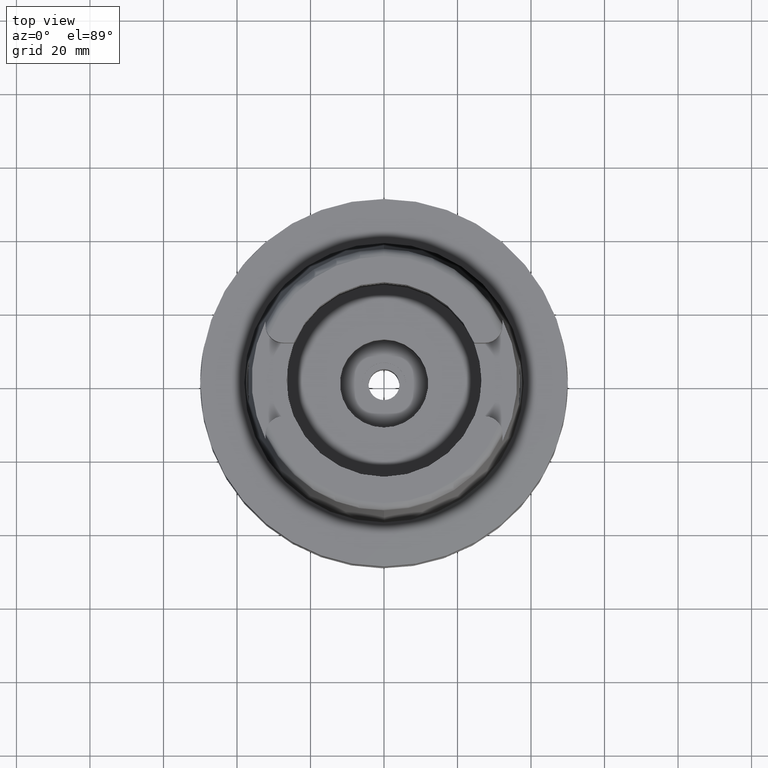
[diagram: clean part render]
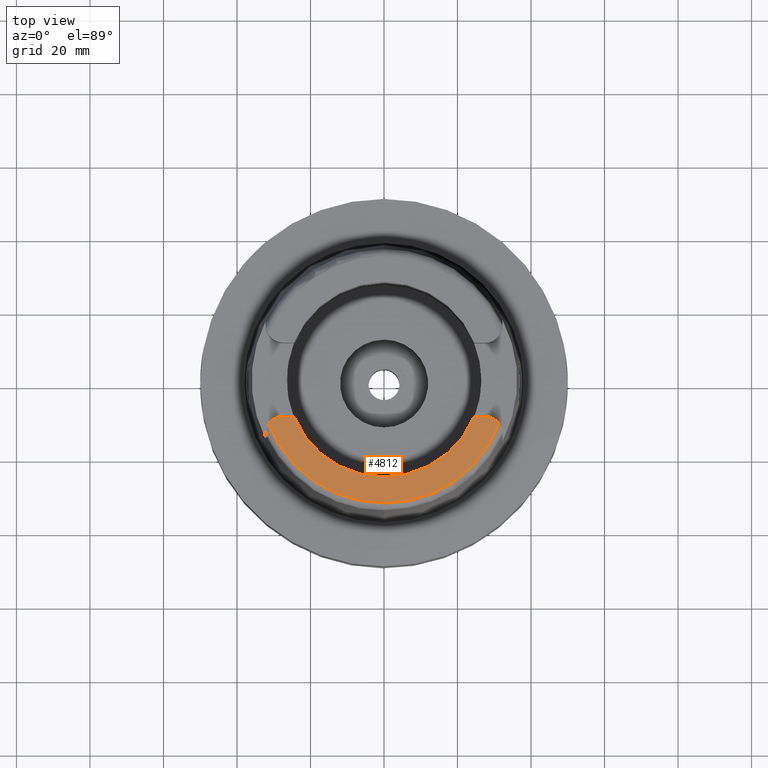
[diagram: same view with one face highlighted and labeled with its STEP entity id]
A machine part, top view. The second image highlights one B-rep face of the part: STEP entity #4812.
In plain terms, the highlighted planar face has unit normal (0, 0, 1).
Its self-contained STEP definition (entity closure, byte-faithful):
#114 = ORIENTED_EDGE ( 'NONE', *, *, #1741, .F. ) ;
#144 = CARTESIAN_POINT ( 'NONE',  ( 27.36999999999999744, -10.00999999999999979, 50.00000000000000000 ) ) ;
#162 = PLANE ( 'NONE',  #3850 ) ;
#310 = VERTEX_POINT ( 'NONE', #4033 ) ;
#424 = ORIENTED_EDGE ( 'NONE', *, *, #836, .F. ) ;
#474 = VERTEX_POINT ( 'NONE', #4772 ) ;
#504 = CARTESIAN_POINT ( 'NONE',  ( 0.0000000000000000000, 0.0000000000000000000, 50.00000000000000000 ) ) ;
#510 = CIRCLE ( 'NONE', #4399, 26.50000000000000000 ) ;
#550 = EDGE_LOOP ( 'NONE', ( #114, #424, #1623, #3859, #2338, #1846, #3693 ) ) ;
#820 = DIRECTION ( 'NONE',  ( 0.0000000000000000000, 1.000000000000000000, 0.0000000000000000000 ) ) ;
#836 = EDGE_CURVE ( 'NONE', #2113, #2295, #2873, .T. ) ;
#872 = DIRECTION ( 'NONE',  ( 0.0000000000000000000, 0.0000000000000000000, -1.000000000000000000 ) ) ;
#881 = AXIS2_PLACEMENT_3D ( 'NONE', #504, #3957, #2739 ) ;
#891 = CIRCLE ( 'NONE', #2073, 4.880000000000001670 ) ;
#959 = EDGE_CURVE ( 'NONE', #474, #310, #3326, .T. ) ;
#1010 = FACE_OUTER_BOUND ( 'NONE', #550, .T. ) ;
#1071 = VERTEX_POINT ( 'NONE', #1116 ) ;
#1097 = DIRECTION ( 'NONE',  ( -1.000000000000000000, 1.442003377036999905E-13, 0.0000000000000000000 ) ) ;
#1116 = CARTESIAN_POINT ( 'NONE',  ( 24.53670515777999839, -10.00999999999999979, 50.00000000000000000 ) ) ;
#1267 = VERTEX_POINT ( 'NONE', #5568 ) ;
#1344 = DIRECTION ( 'NONE',  ( -1.000000000000000000, -1.454542536837999925E-13, 0.0000000000000000000 ) ) ;
#1623 = ORIENTED_EDGE ( 'NONE', *, *, #4436, .T. ) ;
#1741 = EDGE_CURVE ( 'NONE', #2295, #2890, #3149, .T. ) ;
#1750 = DIRECTION ( 'NONE',  ( 0.0000000000000000000, -1.000000000000000000, 0.0000000000000000000 ) ) ;
#1846 = ORIENTED_EDGE ( 'NONE', *, *, #4119, .T. ) ;
#1858 = VECTOR ( 'NONE', #1097, 1000.000000000000000 ) ;
#1862 = EDGE_CURVE ( 'NONE', #2890, #1267, #891, .T. ) ;
#2042 = CARTESIAN_POINT ( 'NONE',  ( 0.0000000000000000000, 0.0000000000000000000, 50.00000000000000000 ) ) ;
#2073 = AXIS2_PLACEMENT_3D ( 'NONE', #4301, #2556, #4762 ) ;
#2113 = VERTEX_POINT ( 'NONE', #4530 ) ;
#2147 = CARTESIAN_POINT ( 'NONE',  ( 0.0000000000000000000, 0.0000000000000000000, 50.00000000000000000 ) ) ;
#2295 = VERTEX_POINT ( 'NONE', #3365 ) ;
#2313 = VECTOR ( 'NONE', #1344, 1000.000000000000000 ) ;
#2338 = ORIENTED_EDGE ( 'NONE', *, *, #959, .F. ) ;
#2354 = LINE ( 'NONE', #4470, #1858 ) ;
#2495 = DIRECTION ( 'NONE',  ( 0.0000000000000000000, 0.0000000000000000000, -1.000000000000000000 ) ) ;
#2556 = DIRECTION ( 'NONE',  ( 0.0000000000000000000, 0.0000000000000000000, -1.000000000000000000 ) ) ;
#2739 = DIRECTION ( 'NONE',  ( -0.9259134021805098813, -0.3777358490566039562, 0.0000000000000000000 ) ) ;
#2873 = CIRCLE ( 'NONE', #4696, 4.879999999999999005 ) ;
#2890 = VERTEX_POINT ( 'NONE', #3549 ) ;
#3149 = CIRCLE ( 'NONE', #5160, 33.59743838135999994 ) ;
#3326 = CIRCLE ( 'NONE', #881, 26.50000000000000711 ) ;
#3365 = CARTESIAN_POINT ( 'NONE',  ( 31.35385269249000473, -12.07161079256999869, 50.00000000000000000 ) ) ;
#3549 = CARTESIAN_POINT ( 'NONE',  ( -31.35385269249000473, -12.07161079256999869, 50.00000000000000000 ) ) ;
#3637 = CARTESIAN_POINT ( 'NONE',  ( 0.0000000000000000000, 0.0000000000000000000, 50.00000000000000000 ) ) ;
#3693 = ORIENTED_EDGE ( 'NONE', *, *, #1862, .F. ) ;
#3817 = CARTESIAN_POINT ( 'NONE',  ( 27.36999999999999744, -14.89000000000000057, 50.00000000000000000 ) ) ;
#3850 = AXIS2_PLACEMENT_3D ( 'NONE', #3637, #4465, #4124 ) ;
#3859 = ORIENTED_EDGE ( 'NONE', *, *, #5205, .F. ) ;
#3957 = DIRECTION ( 'NONE',  ( 0.0000000000000000000, 0.0000000000000000000, 1.000000000000000000 ) ) ;
#4033 = CARTESIAN_POINT ( 'NONE',  ( 0.0000000000000000000, -26.50000000000000000, 50.00000000000000000 ) ) ;
#4119 = EDGE_CURVE ( 'NONE', #474, #1267, #2354, .T. ) ;
#4124 = DIRECTION ( 'NONE',  ( 1.000000000000000000, 0.0000000000000000000, 0.0000000000000000000 ) ) ;
#4162 = DIRECTION ( 'NONE',  ( 0.9332215253017949186, -0.3593015233941980191, 0.0000000000000000000 ) ) ;
#4301 = CARTESIAN_POINT ( 'NONE',  ( -27.36999999999999744, -14.89000000000000057, 50.00000000000000000 ) ) ;
#4399 = AXIS2_PLACEMENT_3D ( 'NONE', #2147, #4756, #1750 ) ;
#4436 = EDGE_CURVE ( 'NONE', #2113, #1071, #4858, .T. ) ;
#4465 = DIRECTION ( 'NONE',  ( 0.0000000000000000000, 0.0000000000000000000, 1.000000000000000000 ) ) ;
#4470 = CARTESIAN_POINT ( 'NONE',  ( -24.53670515777999839, -10.00999999999999979, 50.00000000000000000 ) ) ;
#4530 = CARTESIAN_POINT ( 'NONE',  ( 27.36999999999999744, -10.00999999999999979, 50.00000000000000000 ) ) ;
#4696 = AXIS2_PLACEMENT_3D ( 'NONE', #3817, #872, #820 ) ;
#4756 = DIRECTION ( 'NONE',  ( 0.0000000000000000000, 0.0000000000000000000, 1.000000000000000000 ) ) ;
#4762 = DIRECTION ( 'NONE',  ( -0.8163632566568778115, 0.5775387720149849358, 0.0000000000000000000 ) ) ;
#4772 = CARTESIAN_POINT ( 'NONE',  ( -24.53670515777999839, -10.00999999999999979, 50.00000000000000000 ) ) ;
#4812 = ADVANCED_FACE ( 'NONE', ( #1010 ), #162, .T. ) ;
#4858 = LINE ( 'NONE', #144, #2313 ) ;
#5160 = AXIS2_PLACEMENT_3D ( 'NONE', #2042, #2495, #4162 ) ;
#5205 = EDGE_CURVE ( 'NONE', #310, #1071, #510, .T. ) ;
#5568 = CARTESIAN_POINT ( 'NONE',  ( -27.36999999999999744, -10.00999999999999979, 50.00000000000000000 ) ) ;